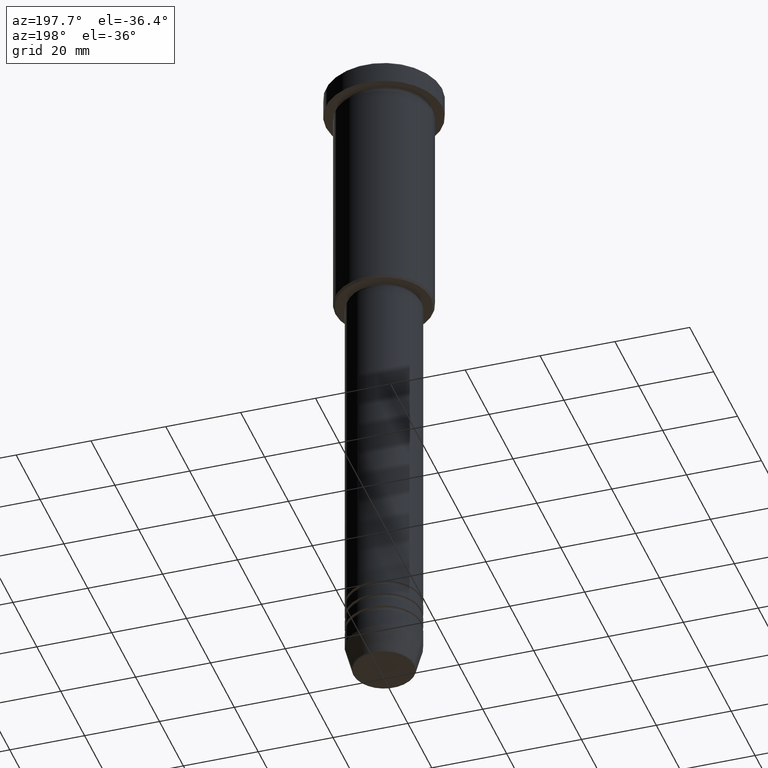
[diagram: clean part render]
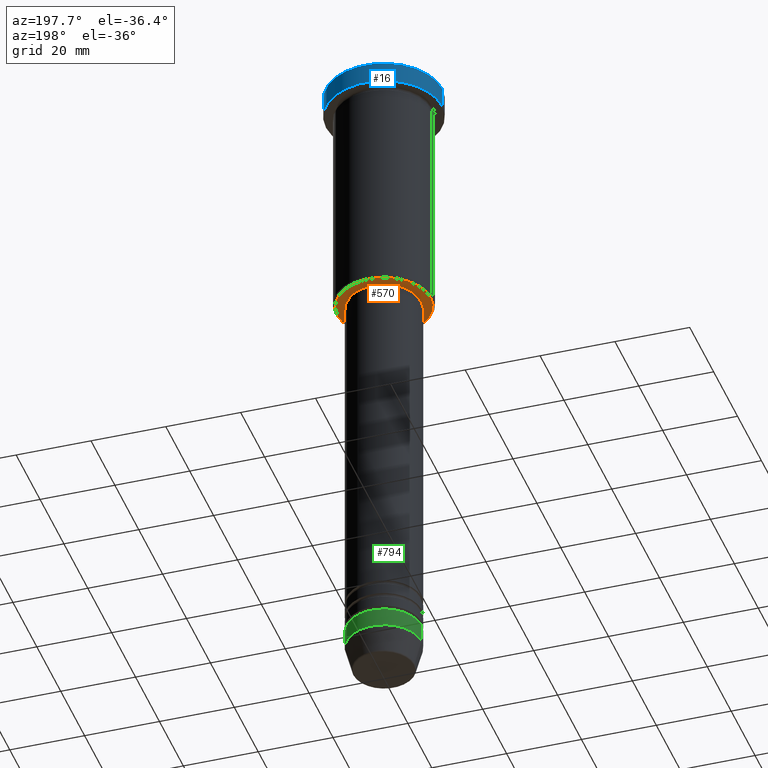
[diagram: same view with three faces highlighted in distinct colors, each labeled with its STEP entity id]
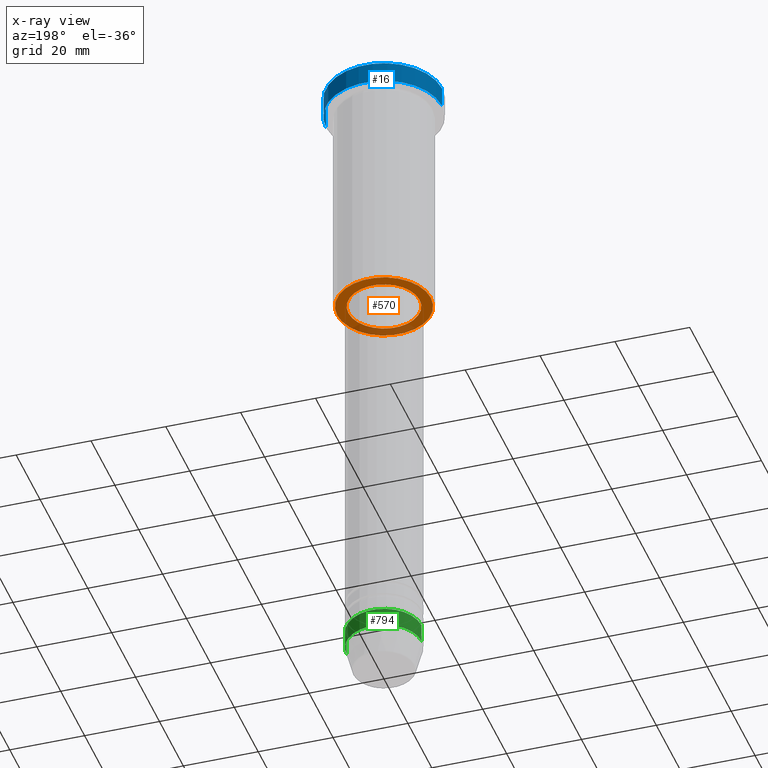
[diagram: x-ray of the same camera — body ghosted, the three highlighted faces saturated]
A machine part, auxiliary view with three faces highlighted in distinct colors.
The next image is the same camera in x-ray (body ghosted, the three faces saturated) — at least one of them is partly hidden behind the body in this view.
Their STEP definitions:

[orange] entity #570 — the highlighted planar face has unit normal (0, 0, -1).
#11 = CARTESIAN_POINT ( 'NONE',  ( 0.000000000000000000, 0.000000000000000000, -65.99999999999997158 ) ) ;
#36 = AXIS2_PLACEMENT_3D ( 'NONE', #620, #280, #87 ) ;
#80 = EDGE_CURVE ( 'NONE', #471, #682, #209, .T. ) ;
#87 = DIRECTION ( 'NONE',  ( 1.000000000000000000, 0.000000000000000000, 0.000000000000000000 ) ) ;
#114 = ORIENTED_EDGE ( 'NONE', *, *, #395, .T. ) ;
#177 = EDGE_CURVE ( 'NONE', #682, #471, #456, .T. ) ;
#199 = CARTESIAN_POINT ( 'NONE',  ( -9.500000000000001776, 1.163414459189985682E-15, -65.99999999999997158 ) ) ;
#209 = CIRCLE ( 'NONE', #801, 12.50000000000002487 ) ;
#217 = FACE_OUTER_BOUND ( 'NONE', #748, .T. ) ;
#280 = DIRECTION ( 'NONE',  ( -0.000000000000000000, -0.000000000000000000, 1.000000000000000000 ) ) ;
#285 = DIRECTION ( 'NONE',  ( 0.000000000000000000, 0.000000000000000000, -1.000000000000000000 ) ) ;
#322 = CARTESIAN_POINT ( 'NONE',  ( -12.50000000000002487, 1.561424668912876886E-15, -65.99999999999997158 ) ) ;
#395 = EDGE_CURVE ( 'NONE', #782, #1138, #1003, .T. ) ;
#421 = EDGE_LOOP ( 'NONE', ( #607, #114 ) ) ;
#456 = CIRCLE ( 'NONE', #787, 12.50000000000002487 ) ;
#471 = VERTEX_POINT ( 'NONE', #322 ) ;
#492 = FACE_BOUND ( 'NONE', #421, .T. ) ;
#507 = ORIENTED_EDGE ( 'NONE', *, *, #80, .T. ) ;
#537 = DIRECTION ( 'NONE',  ( -1.000000000000000000, 0.000000000000000000, -0.000000000000000000 ) ) ;
#562 = DIRECTION ( 'NONE',  ( -1.000000000000000000, 0.000000000000000000, 0.000000000000000000 ) ) ;
#570 = ADVANCED_FACE ( 'NONE', ( #217, #492 ), #584, .T. ) ;
#584 = PLANE ( 'NONE',  #1061 ) ;
#592 = DIRECTION ( 'NONE',  ( 0.000000000000000000, 0.000000000000000000, -1.000000000000000000 ) ) ;
#599 = AXIS2_PLACEMENT_3D ( 'NONE', #780, #665, #670 ) ;
#607 = ORIENTED_EDGE ( 'NONE', *, *, #922, .T. ) ;
#620 = CARTESIAN_POINT ( 'NONE',  ( 0.000000000000000000, 0.000000000000000000, -65.99999999999997158 ) ) ;
#665 = DIRECTION ( 'NONE',  ( -0.000000000000000000, -0.000000000000000000, 1.000000000000000000 ) ) ;
#670 = DIRECTION ( 'NONE',  ( 1.000000000000000000, 0.000000000000000000, 0.000000000000000000 ) ) ;
#680 = DIRECTION ( 'NONE',  ( -1.000000000000000000, 0.000000000000000000, 0.000000000000000000 ) ) ;
#682 = VERTEX_POINT ( 'NONE', #1055 ) ;
#720 = DIRECTION ( 'NONE',  ( 0.000000000000000000, 0.000000000000000000, -1.000000000000000000 ) ) ;
#748 = EDGE_LOOP ( 'NONE', ( #1095, #507 ) ) ;
#780 = CARTESIAN_POINT ( 'NONE',  ( 0.000000000000000000, 0.000000000000000000, -65.99999999999997158 ) ) ;
#782 = VERTEX_POINT ( 'NONE', #199 ) ;
#787 = AXIS2_PLACEMENT_3D ( 'NONE', #11, #285, #562 ) ;
#801 = AXIS2_PLACEMENT_3D ( 'NONE', #832, #592, #680 ) ;
#832 = CARTESIAN_POINT ( 'NONE',  ( 0.000000000000000000, 0.000000000000000000, -65.99999999999997158 ) ) ;
#881 = CARTESIAN_POINT ( 'NONE',  ( 0.000000000000000000, 13.00000000000000000, -65.99999999999997158 ) ) ;
#922 = EDGE_CURVE ( 'NONE', #1138, #782, #1062, .T. ) ;
#1003 = CIRCLE ( 'NONE', #36, 9.500000000000001776 ) ;
#1055 = CARTESIAN_POINT ( 'NONE',  ( 12.50000000000002487, 0.000000000000000000, -65.99999999999997158 ) ) ;
#1061 = AXIS2_PLACEMENT_3D ( 'NONE', #881, #720, #537 ) ;
#1062 = CIRCLE ( 'NONE', #599, 9.500000000000001776 ) ;
#1095 = ORIENTED_EDGE ( 'NONE', *, *, #177, .T. ) ;
#1138 = VERTEX_POINT ( 'NONE', #1163 ) ;
#1163 = CARTESIAN_POINT ( 'NONE',  ( 9.500000000000001776, 0.000000000000000000, -65.99999999999997158 ) ) ;

[blue] entity #16 — the highlighted cylindrical surface (partial cylindrical patch) has radius 15.5 mm, axis along (-0, -0, 1).
#16 = ADVANCED_FACE ( 'NONE', ( #994 ), #721, .T. ) ;
#25 = EDGE_LOOP ( 'NONE', ( #619, #236, #703, #850 ) ) ;
#30 = CARTESIAN_POINT ( 'NONE',  ( -15.50000000000000000, 1.898202538678397557E-15, 0.000000000000000000 ) ) ;
#95 = VECTOR ( 'NONE', #147, 1000.000000000000000 ) ;
#141 = VECTOR ( 'NONE', #414, 1000.000000000000000 ) ;
#147 = DIRECTION ( 'NONE',  ( -0.000000000000000000, -0.000000000000000000, 1.000000000000000000 ) ) ;
#164 = CARTESIAN_POINT ( 'NONE',  ( 15.50000000000000000, 0.000000000000000000, -0.5000000000000125455 ) ) ;
#174 = CARTESIAN_POINT ( 'NONE',  ( -15.50000000000000000, 1.898202538678397557E-15, -0.5000000000000125455 ) ) ;
#236 = ORIENTED_EDGE ( 'NONE', *, *, #530, .T. ) ;
#316 = LINE ( 'NONE', #30, #95 ) ;
#363 = EDGE_CURVE ( 'NONE', #999, #1128, #952, .T. ) ;
#366 = LINE ( 'NONE', #868, #141 ) ;
#414 = DIRECTION ( 'NONE',  ( -0.000000000000000000, -0.000000000000000000, 1.000000000000000000 ) ) ;
#422 = CARTESIAN_POINT ( 'NONE',  ( 0.000000000000000000, 0.000000000000000000, -5.999999999999995559 ) ) ;
#524 = AXIS2_PLACEMENT_3D ( 'NONE', #1032, #957, #684 ) ;
#530 = EDGE_CURVE ( 'NONE', #1128, #734, #316, .T. ) ;
#531 = CARTESIAN_POINT ( 'NONE',  ( -15.50000000000000000, 1.898202538678397557E-15, -5.999999999999995559 ) ) ;
#559 = DIRECTION ( 'NONE',  ( -0.000000000000000000, -0.000000000000000000, 1.000000000000000000 ) ) ;
#580 = VERTEX_POINT ( 'NONE', #164 ) ;
#619 = ORIENTED_EDGE ( 'NONE', *, *, #363, .T. ) ;
#639 = DIRECTION ( 'NONE',  ( 1.000000000000000000, 0.000000000000000000, 0.000000000000000000 ) ) ;
#684 = DIRECTION ( 'NONE',  ( 1.000000000000000000, 0.000000000000000000, 0.000000000000000000 ) ) ;
#703 = ORIENTED_EDGE ( 'NONE', *, *, #986, .T. ) ;
#721 = CYLINDRICAL_SURFACE ( 'NONE', #802, 15.50000000000000000 ) ;
#734 = VERTEX_POINT ( 'NONE', #174 ) ;
#795 = DIRECTION ( 'NONE',  ( 1.000000000000000000, 0.000000000000000000, 0.000000000000000000 ) ) ;
#802 = AXIS2_PLACEMENT_3D ( 'NONE', #1103, #559, #639 ) ;
#822 = CIRCLE ( 'NONE', #524, 15.50000000000000000 ) ;
#838 = AXIS2_PLACEMENT_3D ( 'NONE', #422, #878, #795 ) ;
#843 = EDGE_CURVE ( 'NONE', #999, #580, #366, .T. ) ;
#848 = CARTESIAN_POINT ( 'NONE',  ( 15.50000000000000000, 0.000000000000000000, -5.999999999999995559 ) ) ;
#850 = ORIENTED_EDGE ( 'NONE', *, *, #843, .F. ) ;
#868 = CARTESIAN_POINT ( 'NONE',  ( 15.50000000000000000, 0.000000000000000000, 0.000000000000000000 ) ) ;
#878 = DIRECTION ( 'NONE',  ( -0.000000000000000000, -0.000000000000000000, 1.000000000000000000 ) ) ;
#952 = CIRCLE ( 'NONE', #838, 15.50000000000000000 ) ;
#957 = DIRECTION ( 'NONE',  ( 0.000000000000000000, 0.000000000000000000, -1.000000000000000000 ) ) ;
#986 = EDGE_CURVE ( 'NONE', #734, #580, #822, .T. ) ;
#994 = FACE_OUTER_BOUND ( 'NONE', #25, .T. ) ;
#999 = VERTEX_POINT ( 'NONE', #848 ) ;
#1032 = CARTESIAN_POINT ( 'NONE',  ( 0.000000000000000000, 0.000000000000000000, -0.5000000000000125455 ) ) ;
#1103 = CARTESIAN_POINT ( 'NONE',  ( 0.000000000000000000, 0.000000000000000000, 0.000000000000000000 ) ) ;
#1128 = VERTEX_POINT ( 'NONE', #531 ) ;

[green] entity #794 — the highlighted cylindrical surface (partial cylindrical patch) has radius 10 mm, axis along (-0, -0, 1).
#26 = CARTESIAN_POINT ( 'NONE',  ( -10.00000000000000000, 1.224646799147353256E-15, -168.9999999999999716 ) ) ;
#48 = ORIENTED_EDGE ( 'NONE', *, *, #1071, .F. ) ;
#64 = CARTESIAN_POINT ( 'NONE',  ( 10.00000000000000000, 0.000000000000000000, 0.000000000000000000 ) ) ;
#70 = ORIENTED_EDGE ( 'NONE', *, *, #103, .F. ) ;
#73 = CIRCLE ( 'NONE', #1096, 10.00000000000000000 ) ;
#103 = EDGE_CURVE ( 'NONE', #544, #229, #73, .T. ) ;
#112 = CARTESIAN_POINT ( 'NONE',  ( 0.000000000000000000, 0.000000000000000000, 0.000000000000000000 ) ) ;
#139 = CARTESIAN_POINT ( 'NONE',  ( 0.000000000000000000, 0.000000000000000000, -168.9999999999999716 ) ) ;
#192 = FACE_OUTER_BOUND ( 'NONE', #798, .T. ) ;
#229 = VERTEX_POINT ( 'NONE', #26 ) ;
#264 = VERTEX_POINT ( 'NONE', #645 ) ;
#274 = DIRECTION ( 'NONE',  ( -0.000000000000000000, -0.000000000000000000, 1.000000000000000000 ) ) ;
#364 = AXIS2_PLACEMENT_3D ( 'NONE', #701, #1153, #962 ) ;
#371 = CYLINDRICAL_SURFACE ( 'NONE', #598, 10.00000000000000000 ) ;
#393 = CARTESIAN_POINT ( 'NONE',  ( 10.00000000000000000, 0.000000000000000000, -168.9999999999999716 ) ) ;
#457 = VERTEX_POINT ( 'NONE', #593 ) ;
#486 = DIRECTION ( 'NONE',  ( -0.000000000000000000, -0.000000000000000000, 1.000000000000000000 ) ) ;
#527 = DIRECTION ( 'NONE',  ( -0.000000000000000000, -0.000000000000000000, 1.000000000000000000 ) ) ;
#544 = VERTEX_POINT ( 'NONE', #393 ) ;
#587 = CARTESIAN_POINT ( 'NONE',  ( -10.00000000000000000, 1.224646799147353256E-15, 0.000000000000000000 ) ) ;
#588 = DIRECTION ( 'NONE',  ( 1.000000000000000000, 0.000000000000000000, 0.000000000000000000 ) ) ;
#593 = CARTESIAN_POINT ( 'NONE',  ( -10.00000000000000000, 1.224646799147353256E-15, -174.0000000000000000 ) ) ;
#598 = AXIS2_PLACEMENT_3D ( 'NONE', #112, #274, #899 ) ;
#645 = CARTESIAN_POINT ( 'NONE',  ( 10.00000000000000000, 0.000000000000000000, -174.0000000000000000 ) ) ;
#655 = CIRCLE ( 'NONE', #364, 10.00000000000000000 ) ;
#701 = CARTESIAN_POINT ( 'NONE',  ( 0.000000000000000000, 0.000000000000000000, -174.0000000000000000 ) ) ;
#715 = LINE ( 'NONE', #64, #1029 ) ;
#756 = ORIENTED_EDGE ( 'NONE', *, *, #992, .T. ) ;
#770 = VECTOR ( 'NONE', #1135, 1000.000000000000000 ) ;
#794 = ADVANCED_FACE ( 'NONE', ( #192 ), #371, .T. ) ;
#798 = EDGE_LOOP ( 'NONE', ( #809, #756, #70, #48 ) ) ;
#809 = ORIENTED_EDGE ( 'NONE', *, *, #1016, .T. ) ;
#899 = DIRECTION ( 'NONE',  ( 1.000000000000000000, 0.000000000000000000, 0.000000000000000000 ) ) ;
#962 = DIRECTION ( 'NONE',  ( 1.000000000000000000, 0.000000000000000000, 0.000000000000000000 ) ) ;
#992 = EDGE_CURVE ( 'NONE', #457, #229, #1037, .T. ) ;
#1016 = EDGE_CURVE ( 'NONE', #264, #457, #655, .T. ) ;
#1029 = VECTOR ( 'NONE', #527, 1000.000000000000000 ) ;
#1037 = LINE ( 'NONE', #587, #770 ) ;
#1071 = EDGE_CURVE ( 'NONE', #264, #544, #715, .T. ) ;
#1096 = AXIS2_PLACEMENT_3D ( 'NONE', #139, #486, #588 ) ;
#1135 = DIRECTION ( 'NONE',  ( -0.000000000000000000, -0.000000000000000000, 1.000000000000000000 ) ) ;
#1153 = DIRECTION ( 'NONE',  ( -0.000000000000000000, -0.000000000000000000, 1.000000000000000000 ) ) ;